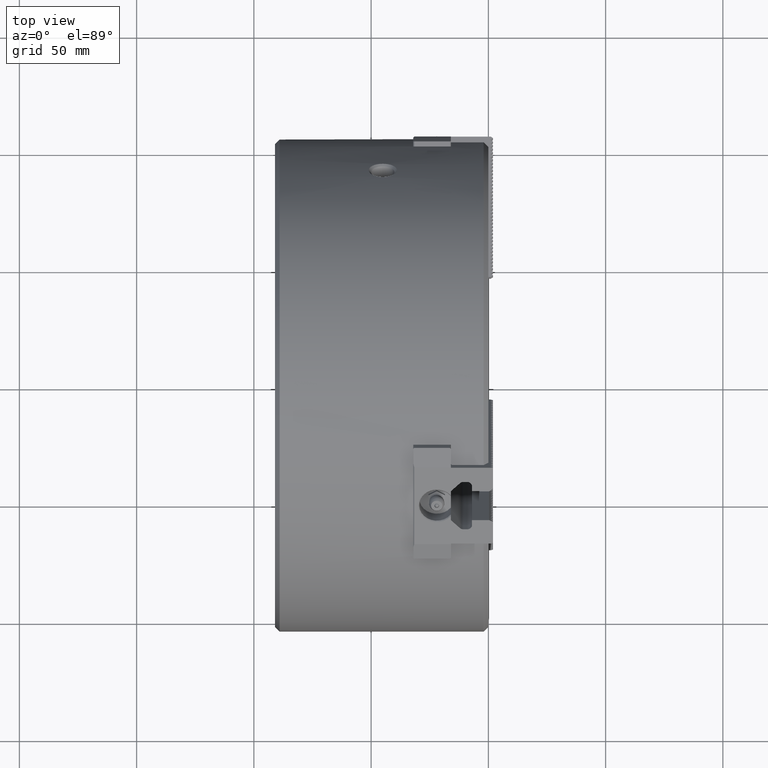
[diagram: clean part render]
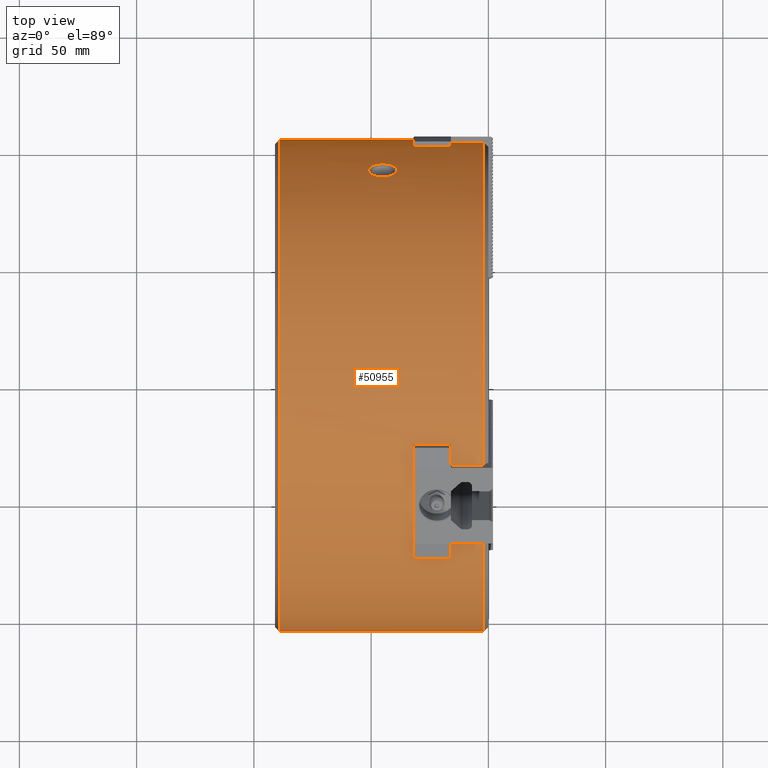
[diagram: same view with one face highlighted and labeled with its STEP entity id]
A machine part, top view. The second image highlights one B-rep face of the part: STEP entity #50955.
In plain terms, the highlighted cylindrical surface (bore or boss wall) has radius 105 mm, axis along (-1, 0, 0).
Its self-contained STEP definition (entity closure, byte-faithful):
#396=B_SPLINE_CURVE_WITH_KNOTS('',3,(#67299,#67300,#67301,#67302,#67303,
#67304,#67305,#67306,#67307,#67308,#67309,#67310,#67311,#67312,#67313),
 .UNSPECIFIED.,.T.,.F.,(1,1,1,1,1,1,1,1,1,1,1,1,1,1,1,1,1,1,1),(-0.0115989388835901,
-0.00927915110687206,-0.00463957555343603,0.,0.00231978777671801,0.00463957555343603,
0.00695936333015404,0.00927915110687206,0.0139187266603081,0.0185583022137441,
0.0208780899904621,0.0231978777671801,0.0255176655438982,0.0278374533206162,
0.0324770288740522,0.0371166044274882,0.0394363922042062,0.0417561799809242,
0.0440759677576423),.UNSPECIFIED.);
#450=B_SPLINE_CURVE_WITH_KNOTS('',3,(#68106,#68107,#68108,#68109,#68110,
#68111,#68112,#68113,#68114,#68115,#68116,#68117,#68118,#68119,#68120),
 .UNSPECIFIED.,.T.,.F.,(1,1,1,1,1,1,1,1,1,1,1,1,1,1,1,1,1,1,1),(-0.00927433492825341,
-0.00463716746412671,-0.00231858373206335,0.,0.00231858373206335,0.00463716746412671,
0.00927433492825341,0.0139115023923801,0.0162300861244435,0.0185486698565068,
0.0208672535885702,0.0231858373206335,0.0278230047847602,0.0324601722488869,
0.0347787559809503,0.0370973397130137,0.039415923445077,0.0417345071771404,
0.0463716746412671),.UNSPECIFIED.);
#2227=CIRCLE('',#52818,105.);
#2230=CIRCLE('',#52822,105.);
#2241=CIRCLE('',#52837,105.);
#2254=CIRCLE('',#52857,105.);
#2263=CIRCLE('',#52867,105.);
#2272=CIRCLE('',#52877,105.);
#2299=CIRCLE('',#52916,105.);
#2308=CIRCLE('',#52926,105.);
#2317=CIRCLE('',#52936,105.);
#2346=CIRCLE('',#52975,105.);
#2355=CIRCLE('',#52987,105.);
#2364=CIRCLE('',#52997,105.);
#2395=CIRCLE('',#53041,105.);
#2396=CIRCLE('',#53043,105.);
#2481=CIRCLE('',#53187,105.);
#2568=CIRCLE('',#53332,105.);
#2569=CIRCLE('',#53333,105.);
#2570=CIRCLE('',#53334,105.);
#2571=CIRCLE('',#53335,105.);
#2572=CIRCLE('',#53336,105.);
#2573=CIRCLE('',#53337,105.);
#2574=CIRCLE('',#53338,105.);
#2575=CIRCLE('',#53339,105.);
#2576=CIRCLE('',#53340,105.);
#2577=CIRCLE('',#53341,105.);
#3538=LINE('',#67752,#7565);
#3558=LINE('',#67873,#7585);
#3575=LINE('',#68001,#7602);
#3587=LINE('',#68029,#7614);
#3591=LINE('',#68123,#7618);
#3592=LINE('',#68126,#7619);
#3593=LINE('',#68127,#7620);
#3594=LINE('',#68131,#7621);
#3595=LINE('',#68132,#7622);
#3596=LINE('',#68135,#7623);
#3597=LINE('',#68137,#7624);
#3598=LINE('',#68141,#7625);
#7565=VECTOR('',#57084,1000.);
#7585=VECTOR('',#57178,1000.);
#7602=VECTOR('',#57263,1000.);
#7614=VECTOR('',#57281,1000.);
#7618=VECTOR('',#57369,1000.);
#7619=VECTOR('',#57374,1000.);
#7620=VECTOR('',#57375,1000.);
#7621=VECTOR('',#57382,1000.);
#7622=VECTOR('',#57383,1000.);
#7623=VECTOR('',#57388,1000.);
#7624=VECTOR('',#57391,1000.);
#7625=VECTOR('',#57394,1000.);
#12343=ORIENTED_EDGE('',*,*,#23324,.F.);
#12344=ORIENTED_EDGE('',*,*,#22935,.T.);
#12345=ORIENTED_EDGE('',*,*,#23325,.T.);
#12346=ORIENTED_EDGE('',*,*,#22894,.T.);
#12347=ORIENTED_EDGE('',*,*,#23295,.T.);
#12348=ORIENTED_EDGE('',*,*,#22495,.T.);
#12349=ORIENTED_EDGE('',*,*,#23326,.T.);
#12350=ORIENTED_EDGE('',*,*,#22995,.T.);
#12351=ORIENTED_EDGE('',*,*,#23327,.T.);
#12352=ORIENTED_EDGE('',*,*,#22983,.F.);
#12353=ORIENTED_EDGE('',*,*,#23328,.F.);
#12354=ORIENTED_EDGE('',*,*,#22999,.F.);
#12355=ORIENTED_EDGE('',*,*,#23329,.F.);
#12356=ORIENTED_EDGE('',*,*,#22707,.F.);
#12357=ORIENTED_EDGE('',*,*,#23281,.F.);
#12358=ORIENTED_EDGE('',*,*,#22785,.F.);
#12359=ORIENTED_EDGE('',*,*,#23330,.T.);
#12360=ORIENTED_EDGE('',*,*,#22744,.F.);
#12361=ORIENTED_EDGE('',*,*,#23231,.T.);
#12362=ORIENTED_EDGE('',*,*,#22541,.T.);
#12363=ORIENTED_EDGE('',*,*,#23331,.T.);
#12364=ORIENTED_EDGE('',*,*,#23046,.T.);
#12365=ORIENTED_EDGE('',*,*,#23332,.T.);
#12366=ORIENTED_EDGE('',*,*,#23140,.T.);
#12367=ORIENTED_EDGE('',*,*,#23333,.F.);
#12368=ORIENTED_EDGE('',*,*,#23060,.F.);
#12369=ORIENTED_EDGE('',*,*,#23334,.F.);
#12370=ORIENTED_EDGE('',*,*,#22571,.F.);
#12371=ORIENTED_EDGE('',*,*,#23180,.F.);
#12372=ORIENTED_EDGE('',*,*,#22649,.F.);
#12373=ORIENTED_EDGE('',*,*,#23335,.T.);
#12374=ORIENTED_EDGE('',*,*,#22608,.F.);
#12375=ORIENTED_EDGE('',*,*,#23336,.T.);
#12376=ORIENTED_EDGE('',*,*,#22858,.T.);
#12377=ORIENTED_EDGE('',*,*,#23337,.T.);
#12378=ORIENTED_EDGE('',*,*,#23019,.T.);
#12379=ORIENTED_EDGE('',*,*,#23338,.T.);
#12380=ORIENTED_EDGE('',*,*,#23339,.F.);
#12381=ORIENTED_EDGE('',*,*,#23340,.F.);
#12382=ORIENTED_EDGE('',*,*,#23011,.F.);
#12383=ORIENTED_EDGE('',*,*,#23341,.F.);
#12384=ORIENTED_EDGE('',*,*,#22503,.F.);
#12385=ORIENTED_EDGE('',*,*,#22984,.T.);
#12386=ORIENTED_EDGE('',*,*,#23323,.F.);
#12387=ORIENTED_EDGE('',*,*,#23005,.F.);
#22495=EDGE_CURVE('',#28107,#28106,#2227,.T.);
#22503=EDGE_CURVE('',#28114,#28115,#2230,.T.);
#22541=EDGE_CURVE('',#28153,#28152,#2241,.T.);
#22571=EDGE_CURVE('',#28182,#28183,#2254,.T.);
#22608=EDGE_CURVE('',#28219,#28196,#2263,.T.);
#22649=EDGE_CURVE('',#28260,#28261,#2272,.T.);
#22707=EDGE_CURVE('',#28316,#28317,#2299,.T.);
#22744=EDGE_CURVE('',#28353,#28330,#2308,.T.);
#22785=EDGE_CURVE('',#28394,#28395,#2317,.T.);
#22858=EDGE_CURVE('',#28463,#28462,#2346,.T.);
#22894=EDGE_CURVE('',#28474,#28497,#2355,.T.);
#22935=EDGE_CURVE('',#28539,#28538,#2364,.T.);
#22983=EDGE_CURVE('',#28577,#28575,#2395,.T.);
#22984=EDGE_CURVE('',#28578,#28578,#2396,.T.);
#22995=EDGE_CURVE('',#28588,#28587,#31830,.T.);
#22999=EDGE_CURVE('',#28590,#28591,#31832,.T.);
#23005=EDGE_CURVE('',#28596,#28596,#396,.T.);
#23011=EDGE_CURVE('',#28602,#28603,#31834,.T.);
#23019=EDGE_CURVE('',#28608,#28607,#31836,.T.);
#23046=EDGE_CURVE('',#28626,#28625,#31838,.T.);
#23060=EDGE_CURVE('',#28637,#28638,#31840,.T.);
#23140=EDGE_CURVE('',#28689,#28688,#2481,.T.);
#23180=EDGE_CURVE('',#28261,#28182,#3538,.T.);
#23231=EDGE_CURVE('',#28353,#28153,#3558,.T.);
#23281=EDGE_CURVE('',#28395,#28316,#3575,.T.);
#23295=EDGE_CURVE('',#28497,#28107,#3587,.T.);
#23323=EDGE_CURVE('',#28801,#28801,#450,.T.);
#23324=EDGE_CURVE('',#28539,#28114,#3591,.T.);
#23325=EDGE_CURVE('',#28538,#28474,#2568,.F.);
#23326=EDGE_CURVE('',#28106,#28588,#2569,.T.);
#23327=EDGE_CURVE('',#28587,#28575,#3592,.T.);
#23328=EDGE_CURVE('',#28591,#28577,#3593,.T.);
#23329=EDGE_CURVE('',#28317,#28590,#2570,.T.);
#23330=EDGE_CURVE('',#28394,#28330,#2571,.F.);
#23331=EDGE_CURVE('',#28152,#28626,#2572,.T.);
#23332=EDGE_CURVE('',#28625,#28689,#3594,.T.);
#23333=EDGE_CURVE('',#28638,#28688,#3595,.T.);
#23334=EDGE_CURVE('',#28183,#28637,#2573,.T.);
#23335=EDGE_CURVE('',#28260,#28196,#2574,.F.);
#23336=EDGE_CURVE('',#28219,#28463,#3596,.T.);
#23337=EDGE_CURVE('',#28462,#28608,#2575,.T.);
#23338=EDGE_CURVE('',#28607,#28802,#3597,.T.);
#23339=EDGE_CURVE('',#28803,#28802,#2576,.T.);
#23340=EDGE_CURVE('',#28603,#28803,#3598,.T.);
#23341=EDGE_CURVE('',#28115,#28602,#2577,.T.);
#28106=VERTEX_POINT('',#66140);
#28107=VERTEX_POINT('',#66142);
#28114=VERTEX_POINT('',#66157);
#28115=VERTEX_POINT('',#66159);
#28152=VERTEX_POINT('',#66247);
#28153=VERTEX_POINT('',#66249);
#28182=VERTEX_POINT('',#66312);
#28183=VERTEX_POINT('',#66314);
#28196=VERTEX_POINT('',#66348);
#28219=VERTEX_POINT('',#66402);
#28260=VERTEX_POINT('',#66494);
#28261=VERTEX_POINT('',#66496);
#28316=VERTEX_POINT('',#66620);
#28317=VERTEX_POINT('',#66622);
#28330=VERTEX_POINT('',#66656);
#28353=VERTEX_POINT('',#66710);
#28394=VERTEX_POINT('',#66802);
#28395=VERTEX_POINT('',#66804);
#28462=VERTEX_POINT('',#66959);
#28463=VERTEX_POINT('',#66961);
#28474=VERTEX_POINT('',#66988);
#28497=VERTEX_POINT('',#67042);
#28538=VERTEX_POINT('',#67134);
#28539=VERTEX_POINT('',#67136);
#28575=VERTEX_POINT('',#67244);
#28577=VERTEX_POINT('',#67248);
#28578=VERTEX_POINT('',#67252);
#28587=VERTEX_POINT('',#67276);
#28588=VERTEX_POINT('',#67278);
#28590=VERTEX_POINT('',#67284);
#28591=VERTEX_POINT('',#67286);
#28596=VERTEX_POINT('',#67314);
#28602=VERTEX_POINT('',#67329);
#28603=VERTEX_POINT('',#67331);
#28607=VERTEX_POINT('',#67352);
#28608=VERTEX_POINT('',#67354);
#28625=VERTEX_POINT('',#67411);
#28626=VERTEX_POINT('',#67413);
#28637=VERTEX_POINT('',#67448);
#28638=VERTEX_POINT('',#67450);
#28688=VERTEX_POINT('',#67641);
#28689=VERTEX_POINT('',#67643);
#28801=VERTEX_POINT('',#68121);
#28802=VERTEX_POINT('',#68138);
#28803=VERTEX_POINT('',#68140);
#31830=ELLIPSE('',#53056,148.492424049174,105.);
#31832=ELLIPSE('',#53059,148.492424049174,105.);
#31834=ELLIPSE('',#53074,148.492424049174,105.);
#31836=ELLIPSE('',#53079,148.492424049174,105.);
#31838=ELLIPSE('',#53106,148.492424049174,105.);
#31840=ELLIPSE('',#53119,148.492424049174,105.);
#32217=EDGE_LOOP('',(#12343,#12344,#12345,#12346,#12347,#12348,#12349,#12350,
#12351,#12352,#12353,#12354,#12355,#12356,#12357,#12358,#12359,#12360,#12361,
#12362,#12363,#12364,#12365,#12366,#12367,#12368,#12369,#12370,#12371,#12372,
#12373,#12374,#12375,#12376,#12377,#12378,#12379,#12380,#12381,#12382,#12383,
#12384));
#32218=EDGE_LOOP('',(#12385));
#32219=EDGE_LOOP('',(#12386));
#32220=EDGE_LOOP('',(#12387));
#34500=FACE_BOUND('',#32217,.T.);
#34501=FACE_BOUND('',#32218,.T.);
#34502=FACE_BOUND('',#32219,.T.);
#34503=FACE_BOUND('',#32220,.T.);
#36651=CYLINDRICAL_SURFACE('',#53331,105.);
#50955=ADVANCED_FACE('',(#34500,#34501,#34502,#34503),#36651,.T.);
#52818=AXIS2_PLACEMENT_3D('',#66141,#55945,#55946);
#52822=AXIS2_PLACEMENT_3D('',#66158,#55958,#55959);
#52837=AXIS2_PLACEMENT_3D('',#66248,#56011,#56012);
#52857=AXIS2_PLACEMENT_3D('',#66313,#56066,#56067);
#52867=AXIS2_PLACEMENT_3D('',#66403,#56111,#56112);
#52877=AXIS2_PLACEMENT_3D('',#66495,#56161,#56162);
#52916=AXIS2_PLACEMENT_3D('',#66621,#56270,#56271);
#52926=AXIS2_PLACEMENT_3D('',#66711,#56315,#56316);
#52936=AXIS2_PLACEMENT_3D('',#66803,#56365,#56366);
#52975=AXIS2_PLACEMENT_3D('',#66960,#56486,#56487);
#52987=AXIS2_PLACEMENT_3D('',#67043,#56535,#56536);
#52997=AXIS2_PLACEMENT_3D('',#67135,#56585,#56586);
#53041=AXIS2_PLACEMENT_3D('',#67249,#56686,#56687);
#53043=AXIS2_PLACEMENT_3D('',#67251,#56690,#56691);
#53056=AXIS2_PLACEMENT_3D('',#67277,#56719,#56720);
#53059=AXIS2_PLACEMENT_3D('',#67285,#56727,#56728);
#53074=AXIS2_PLACEMENT_3D('',#67330,#56760,#56761);
#53079=AXIS2_PLACEMENT_3D('',#67353,#56773,#56774);
#53106=AXIS2_PLACEMENT_3D('',#67412,#56833,#56834);
#53119=AXIS2_PLACEMENT_3D('',#67449,#56861,#56862);
#53187=AXIS2_PLACEMENT_3D('',#67642,#57017,#57018);
#53331=AXIS2_PLACEMENT_3D('',#68122,#57367,#57368);
#53332=AXIS2_PLACEMENT_3D('',#68124,#57370,#57371);
#53333=AXIS2_PLACEMENT_3D('',#68125,#57372,#57373);
#53334=AXIS2_PLACEMENT_3D('',#68128,#57376,#57377);
#53335=AXIS2_PLACEMENT_3D('',#68129,#57378,#57379);
#53336=AXIS2_PLACEMENT_3D('',#68130,#57380,#57381);
#53337=AXIS2_PLACEMENT_3D('',#68133,#57384,#57385);
#53338=AXIS2_PLACEMENT_3D('',#68134,#57386,#57387);
#53339=AXIS2_PLACEMENT_3D('',#68136,#57389,#57390);
#53340=AXIS2_PLACEMENT_3D('',#68139,#57392,#57393);
#53341=AXIS2_PLACEMENT_3D('',#68142,#57395,#57396);
#55945=DIRECTION('',(1.,0.,-4.36408421629386E-16));
#55946=DIRECTION('',(-4.36408421629386E-16,0.,-1.));
#55958=DIRECTION('',(-1.,-6.08902011217469E-30,-4.36408421629386E-16));
#55959=DIRECTION('',(-4.36408421629386E-16,1.3988810110277E-14,1.));
#56011=DIRECTION('',(1.,-3.77940779556518E-16,2.18204210814695E-16));
#56012=DIRECTION('',(-4.36408421629386E-16,-0.866025403784438,0.500000000000001));
#56066=DIRECTION('',(-1.,3.7794077955652E-16,2.18204210814689E-16));
#56067=DIRECTION('',(-4.36408421629386E-16,-0.866025403784443,-0.499999999999992));
#56111=DIRECTION('',(1.,-5.24826060694207E-16,-3.03008467419525E-16));
#56112=DIRECTION('',(6.06016934839059E-16,0.866025403784443,0.499999999999992));
#56161=DIRECTION('',(1.,-5.24826060694207E-16,-3.03008467419525E-16));
#56162=DIRECTION('',(6.06016934839059E-16,0.866025403784443,0.499999999999992));
#56270=DIRECTION('',(-1.,-3.77940779556518E-16,2.18204210814695E-16));
#56271=DIRECTION('',(-4.36408421629386E-16,0.866025403784438,-0.500000000000001));
#56315=DIRECTION('',(1.,5.24826060694203E-16,-3.03008467419532E-16));
#56316=DIRECTION('',(6.06016934839059E-16,-0.866025403784438,0.500000000000001));
#56365=DIRECTION('',(1.,5.24826060694203E-16,-3.03008467419532E-16));
#56366=DIRECTION('',(6.06016934839059E-16,-0.866025403784438,0.500000000000001));
#56486=DIRECTION('',(1.,3.77940779556521E-16,2.1820421081469E-16));
#56487=DIRECTION('',(-4.36408421629386E-16,0.866025403784443,0.499999999999992));
#56535=DIRECTION('',(-1.,0.,6.0601693483906E-16));
#56536=DIRECTION('',(6.0601693483906E-16,0.,1.));
#56585=DIRECTION('',(-1.,0.,6.0601693483906E-16));
#56586=DIRECTION('',(6.0601693483906E-16,0.,1.));
#56686=DIRECTION('',(1.,0.,0.));
#56687=DIRECTION('',(0.,0.,-1.));
#56690=DIRECTION('',(1.,0.,0.));
#56691=DIRECTION('',(0.,0.,-1.));
#56719=DIRECTION('',(0.707106781186552,0.,-0.707106781186543));
#56720=DIRECTION('',(0.707106781186543,0.,0.707106781186552));
#56727=DIRECTION('',(-0.707106781186552,-0.612372435695789,0.353553390593275));
#56728=DIRECTION('',(0.707106781186543,-0.612372435695797,0.353553390593279));
#56760=DIRECTION('',(-0.707106781186552,-9.88098491916389E-15,-0.707106781186543));
#56761=DIRECTION('',(0.707106781186543,-9.93649607039515E-15,-0.707106781186552));
#56773=DIRECTION('',(0.707106781186552,0.612372435695794,0.353553390593266));
#56774=DIRECTION('',(0.707106781186543,-0.612372435695802,-0.35355339059327));
#56833=DIRECTION('',(0.707106781186552,-0.612372435695789,0.353553390593275));
#56834=DIRECTION('',(0.707106781186543,0.612372435695797,-0.353553390593279));
#56861=DIRECTION('',(-0.707106781186552,0.612372435695794,0.353553390593266));
#56862=DIRECTION('',(0.707106781186543,0.612372435695802,0.35355339059327));
#57017=DIRECTION('',(-1.,0.,0.));
#57018=DIRECTION('',(0.,-0.866025403784443,-0.499999999999992));
#57084=DIRECTION('',(1.,0.,0.));
#57178=DIRECTION('',(1.,0.,0.));
#57263=DIRECTION('',(1.,0.,0.));
#57281=DIRECTION('',(1.,0.,0.));
#57367=DIRECTION('',(-1.,0.,0.));
#57368=DIRECTION('',(0.,0.,-1.));
#57369=DIRECTION('',(1.,0.,0.));
#57370=DIRECTION('',(1.,0.,-3.12562788464268E-16));
#57371=DIRECTION('',(-3.12562788464268E-16,0.,-1.));
#57372=DIRECTION('',(1.,0.,-4.36408421629386E-16));
#57373=DIRECTION('',(-4.36408421629386E-16,0.,-1.));
#57374=DIRECTION('',(1.,0.,0.));
#57375=DIRECTION('',(1.,0.,0.));
#57376=DIRECTION('',(-1.,-3.77940779556518E-16,2.18204210814695E-16));
#57377=DIRECTION('',(-4.36408421629386E-16,0.866025403784438,-0.500000000000001));
#57378=DIRECTION('',(1.,9.0501693534841E-19,-5.76735348087613E-16));
#57379=DIRECTION('',(-5.76735348087613E-16,0.,-1.));
#57380=DIRECTION('',(1.,-3.77940779556518E-16,2.18204210814695E-16));
#57381=DIRECTION('',(-4.36408421629386E-16,-0.866025403784438,0.500000000000001));
#57382=DIRECTION('',(1.,0.,0.));
#57383=DIRECTION('',(1.,0.,0.));
#57384=DIRECTION('',(-1.,3.7794077955652E-16,2.18204210814689E-16));
#57385=DIRECTION('',(-4.36408421629386E-16,-0.866025403784443,-0.499999999999992));
#57386=DIRECTION('',(1.,1.46387682114274E-15,-7.72675210032192E-16));
#57387=DIRECTION('',(-1.46387682114274E-15,1.,0.));
#57388=DIRECTION('',(1.,0.,0.));
#57389=DIRECTION('',(1.,3.77940779556521E-16,2.1820421081469E-16));
#57390=DIRECTION('',(-4.36408421629386E-16,0.866025403784443,0.499999999999992));
#57391=DIRECTION('',(1.,0.,0.));
#57392=DIRECTION('',(1.,0.,0.));
#57393=DIRECTION('',(0.,0.866025403784443,0.499999999999992));
#57394=DIRECTION('',(1.,0.,0.));
#57395=DIRECTION('',(-1.,-6.08902011217469E-30,-4.36408421629386E-16));
#57396=DIRECTION('',(-4.36408421629386E-16,1.3988810110277E-14,1.));
#66140=CARTESIAN_POINT('',(-16.,101.574800024415,-26.6000000000005));
#66141=CARTESIAN_POINT('',(-16.,0.,0.));
#66142=CARTESIAN_POINT('',(-16.,101.402354509153,-27.25));
#66157=CARTESIAN_POINT('',(-16.,101.402354509154,27.2499999999986));
#66158=CARTESIAN_POINT('',(-16.,0.,0.));
#66159=CARTESIAN_POINT('',(-16.,101.574800024416,26.5999999999995));
#66247=CARTESIAN_POINT('',(-16.0000000000001,-73.8236757631641,-74.6663571952939));
#66248=CARTESIAN_POINT('',(-16.,0.,0.));
#66249=CARTESIAN_POINT('',(-16.,-74.3003695077029,-74.1920150084819));
#66312=CARTESIAN_POINT('',(-16.,-74.3003695077019,74.1920150084829));
#66313=CARTESIAN_POINT('',(-16.,0.,0.));
#66314=CARTESIAN_POINT('',(-16.,-73.8236770064628,74.666355966027));
#66348=CARTESIAN_POINT('',(-32.,-27.7511259717236,101.266356739549));
#66402=CARTESIAN_POINT('',(-32.,-27.1019850014497,101.442015008482));
#66403=CARTESIAN_POINT('',(-32.,0.,0.));
#66494=CARTESIAN_POINT('',(-32.,-73.8236770064625,74.6663559660273));
#66495=CARTESIAN_POINT('',(-32.,0.,0.));
#66496=CARTESIAN_POINT('',(-32.,-74.3003695077019,74.1920150084829));
#66620=CARTESIAN_POINT('',(-16.,-27.1019850014512,-101.442015008482));
#66621=CARTESIAN_POINT('',(-16.,0.,0.));
#66622=CARTESIAN_POINT('',(-16.,-27.7511242854979,-101.266357201643));
#66656=CARTESIAN_POINT('',(-32.,-73.8236757631641,-74.6663571952939));
#66710=CARTESIAN_POINT('',(-32.,-74.3003695077029,-74.1920150084819));
#66711=CARTESIAN_POINT('',(-32.,0.,0.));
#66802=CARTESIAN_POINT('',(-32.,-27.7511242854982,-101.266357201643));
#66803=CARTESIAN_POINT('',(-32.,0.,0.));
#66804=CARTESIAN_POINT('',(-32.,-27.1019850014512,-101.442015008482));
#66959=CARTESIAN_POINT('',(-16.,-27.7511259717236,101.266356739549));
#66960=CARTESIAN_POINT('',(-16.,0.,0.));
#66961=CARTESIAN_POINT('',(-16.,-27.1019850014497,101.442015008482));
#66988=CARTESIAN_POINT('',(-31.9999999999996,101.574800024415,-26.6000000000005));
#67042=CARTESIAN_POINT('',(-32.,101.402354509153,-27.25));
#67043=CARTESIAN_POINT('',(-32.,0.,0.));
#67134=CARTESIAN_POINT('',(-31.9999999999996,101.574800024416,26.5999999999995));
#67135=CARTESIAN_POINT('',(-32.,0.,0.));
#67136=CARTESIAN_POINT('',(-32.,101.402354509154,27.2499999999986));
#67244=CARTESIAN_POINT('',(-2.,103.357389672921,-18.5000000000005));
#67248=CARTESIAN_POINT('',(-2.,-35.6572248798244,-98.7601251207674));
#67249=CARTESIAN_POINT('',(-2.,0.,0.));
#67251=CARTESIAN_POINT('',(-89.,0.,0.));
#67252=CARTESIAN_POINT('',(-89.,0.,-105.));
#67276=CARTESIAN_POINT('',(-15.6000000000005,103.357389672921,-18.5000000000005));
#67277=CARTESIAN_POINT('',(2.89999999999976,0.,0.));
#67278=CARTESIAN_POINT('',(-16.,103.284994069807,-18.9));
#67284=CARTESIAN_POINT('',(-16.0000000000001,-35.2746169033779,-98.8974286941775));
#67285=CARTESIAN_POINT('',(2.89999999999976,0.,0.));
#67286=CARTESIAN_POINT('',(-15.6,-35.6572248798244,-98.7601251207674));
#67299=CARTESIAN_POINT('',(-45.5542692512934,93.9735287483497,46.834897455918));
#67300=CARTESIAN_POINT('',(-49.288633535424,93.1480195347441,48.4879146808473));
#67301=CARTESIAN_POINT('',(-50.8664728032799,91.8396320797877,50.9138461597208));
#67302=CARTESIAN_POINT('',(-51.1369498584234,90.6760470059032,52.9595901358262));
#67303=CARTESIAN_POINT('',(-50.4467890269911,89.5090857522132,54.905526761883));
#67304=CARTESIAN_POINT('',(-48.4184818630027,88.2160696572195,56.9622681766564));
#67305=CARTESIAN_POINT('',(-44.4339298087777,87.5469483634088,57.9661645015851));
#67306=CARTESIAN_POINT('',(-40.711658188869,88.567976399585,56.4209207148384));
#67307=CARTESIAN_POINT('',(-39.1376008636245,90.0071874160704,54.0872788723817));
#67308=CARTESIAN_POINT('',(-38.8615667746965,91.1982675732851,52.0552530065151));
#67309=CARTESIAN_POINT('',(-39.5508694233502,92.3026911839243,50.0670655438285));
#67310=CARTESIAN_POINT('',(-41.5809189841151,93.4384153839308,47.9170194343552));
#67311=CARTESIAN_POINT('',(-45.5542692512934,93.9735287483497,46.834897455918));
#67312=CARTESIAN_POINT('',(-49.288633535424,93.1480195347441,48.4879146808473));
#67313=CARTESIAN_POINT('',(-50.8664728032799,91.8396320797877,50.9138461597208));
#67314=CARTESIAN_POINT('',(-49.5656223391006,92.7669243306657,49.1863573588099));
#67329=CARTESIAN_POINT('',(-16.,103.284994069807,18.8999999999986));
#67330=CARTESIAN_POINT('',(2.89999999999976,0.,0.));
#67331=CARTESIAN_POINT('',(-15.6,103.357389672921,18.4999999999986));
#67352=CARTESIAN_POINT('',(-15.6,-35.6572248664474,98.7601251255972));
#67353=CARTESIAN_POINT('',(2.89999999999976,0.,0.));
#67354=CARTESIAN_POINT('',(-16.,-35.2746169033765,98.897428694178));
#67411=CARTESIAN_POINT('',(-15.6000000139982,-67.700164817343,-80.2601251164275));
#67412=CARTESIAN_POINT('',(2.89999999999976,0.,0.));
#67413=CARTESIAN_POINT('',(-16.,-68.0103771664296,-79.9974286941773));
#67448=CARTESIAN_POINT('',(-16.,-68.0103771664285,79.9974286941783));
#67449=CARTESIAN_POINT('',(2.89999999999976,0.,0.));
#67450=CARTESIAN_POINT('',(-15.6,-67.7001661307362,80.260124008568));
#67641=CARTESIAN_POINT('',(-2.,-67.7001661307362,80.260124008568));
#67642=CARTESIAN_POINT('',(-2.,0.,0.));
#67643=CARTESIAN_POINT('',(-2.,-67.7001648064729,-80.2601251255965));
#67752=CARTESIAN_POINT('',(4.55,-74.3003695077019,74.1920150084829));
#67873=CARTESIAN_POINT('',(4.55,-74.3003695077029,-74.1920150084819));
#68001=CARTESIAN_POINT('',(4.55,-27.1019850014512,-101.442015008482));
#68029=CARTESIAN_POINT('',(4.55,101.402354509153,-27.25));
#68106=CARTESIAN_POINT('',(-50.9736878642194,-91.6631742748798,-51.231489987613));
#68107=CARTESIAN_POINT('',(-51.0900210174716,-90.4780880665267,-53.2970049690628));
#68108=CARTESIAN_POINT('',(-50.2442515181059,-89.3281981062211,-55.1983021619816));
#68109=CARTESIAN_POINT('',(-48.0638913875989,-88.1052979250787,-57.1307342875775));
#68110=CARTESIAN_POINT('',(-44.0213155651198,-87.5734871493244,-57.9271604509025));
#68111=CARTESIAN_POINT('',(-40.4144651374367,-88.7180335564467,-56.1875128464382));
#68112=CARTESIAN_POINT('',(-39.0243710666815,-90.2038344044695,-53.7593598572043));
#68113=CARTESIAN_POINT('',(-38.9111811544514,-91.394047989963,-51.710387571442));
#68114=CARTESIAN_POINT('',(-39.751171963206,-92.4636742393732,-49.7679748122801));
#68115=CARTESIAN_POINT('',(-41.9295567988621,-93.5282868711301,-47.7381603465152));
#68116=CARTESIAN_POINT('',(-45.979498532512,-93.9538006390121,-46.8760392813034));
#68117=CARTESIAN_POINT('',(-49.5834251271128,-93.0182771910522,-48.7391359342025));
#68118=CARTESIAN_POINT('',(-50.9736878642194,-91.6631742748798,-51.231489987613));
#68119=CARTESIAN_POINT('',(-51.0900210174716,-90.4780880665267,-53.2970049690628));
#68120=CARTESIAN_POINT('',(-50.2442515181059,-89.3281981062211,-55.1983021619816));
#68121=CARTESIAN_POINT('',(-50.9296705753686,-90.4839541078679,-53.269635337641));
#68122=CARTESIAN_POINT('',(4.55,0.,0.));
#68123=CARTESIAN_POINT('',(4.55,101.402354509154,27.2499999999986));
#68124=CARTESIAN_POINT('',(-31.9999999999996,0.,0.));
#68125=CARTESIAN_POINT('',(-16.,0.,0.));
#68126=CARTESIAN_POINT('',(4.55,103.357389672921,-18.5));
#68127=CARTESIAN_POINT('',(4.55,-35.6572248664487,-98.7601251255966));
#68128=CARTESIAN_POINT('',(-16.,0.,0.));
#68129=CARTESIAN_POINT('',(-31.9999999999997,0.,0.));
#68130=CARTESIAN_POINT('',(-16.,0.,0.));
#68131=CARTESIAN_POINT('',(4.55,-67.7001648064729,-80.2601251255965));
#68132=CARTESIAN_POINT('',(4.55,-67.7001648064718,80.2601251255974));
#68133=CARTESIAN_POINT('',(-16.,0.,0.));
#68134=CARTESIAN_POINT('',(-31.9999999999997,0.,0.));
#68135=CARTESIAN_POINT('',(4.55,-27.1019850014497,101.442015008482));
#68136=CARTESIAN_POINT('',(-16.,0.,0.));
#68137=CARTESIAN_POINT('',(4.55,-35.6572248664473,98.7601251255971));
#68138=CARTESIAN_POINT('',(-2.,-35.6572248664473,98.7601251255971));
#68139=CARTESIAN_POINT('',(-2.,0.,0.));
#68140=CARTESIAN_POINT('',(-2.,103.357389672921,18.4999999999986));
#68141=CARTESIAN_POINT('',(4.55,103.357389672921,18.4999999999986));
#68142=CARTESIAN_POINT('',(-16.,0.,0.));